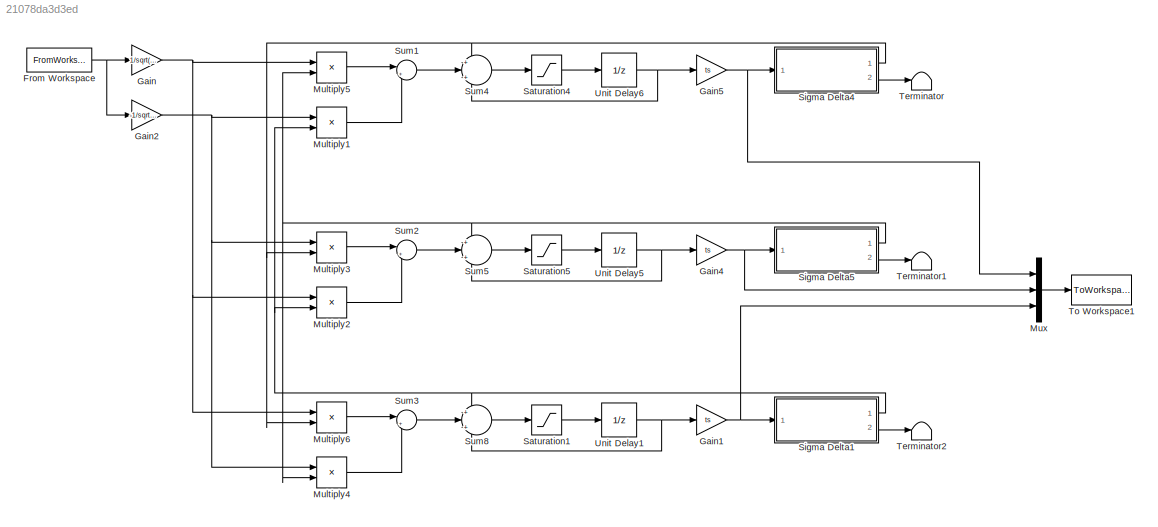
MODEL slx_21078da3d3ed
KIND model
CONFIG AbsTol = auto
CONFIG FixedStep = auto
CONFIG MaxStep = auto
CONFIG MinStep = auto
CONFIG RelTol = 1e-3
CONFIG SampleTimeConstraint = Unconstrained
CONFIG Solver = VariableStepAuto
CONFIG SolverMode = SingleTasking
CONFIG SolverName = VariableStepAuto
CONFIG StartTime = 0.0
CONFIG StopTime = t_stop
BLOCK [FromWorkspace] From Workspace
  SampleTime = ts
  VariableName = [t',w']
  ZeroCross = on
BLOCK [Gain] Gain
  Gain = 1/sqrt(3)
  OutDataTypeStr = Inherit: Inherit via internal rule
  ParamDataTypeStr = Inherit: Inherit via internal rule
  SaturateOnIntegerOverflow = off
BLOCK [Gain] Gain1
  Gain = ts
  OutDataTypeStr = Inherit: Inherit via internal rule
  ParamDataTypeStr = Inherit: Inherit via internal rule
  SaturateOnIntegerOverflow = off
BLOCK [Gain] Gain2
  Gain = -1/sqrt(3)
  OutDataTypeStr = Inherit: Inherit via internal rule
  ParamDataTypeStr = Inherit: Inherit via internal rule
  SaturateOnIntegerOverflow = off
BLOCK [Gain] Gain4
  Gain = ts
  OutDataTypeStr = Inherit: Inherit via internal rule
  ParamDataTypeStr = Inherit: Inherit via internal rule
  SaturateOnIntegerOverflow = off
BLOCK [Gain] Gain5
  Gain = ts
  OutDataTypeStr = Inherit: Inherit via internal rule
  ParamDataTypeStr = Inherit: Inherit via internal rule
  SaturateOnIntegerOverflow = off
BLOCK [Product] Multiply1
  InputSameDT = off
  OutDataTypeStr = Inherit: Inherit via internal rule
  Ports = [2, 1]
  RndMeth = Floor
  SaturateOnIntegerOverflow = off
BLOCK [Product] Multiply2
  InputSameDT = off
  OutDataTypeStr = Inherit: Inherit via internal rule
  Ports = [2, 1]
  RndMeth = Floor
  SaturateOnIntegerOverflow = off
BLOCK [Product] Multiply3
  InputSameDT = off
  OutDataTypeStr = Inherit: Inherit via internal rule
  Ports = [2, 1]
  RndMeth = Floor
  SaturateOnIntegerOverflow = off
BLOCK [Product] Multiply4
  InputSameDT = off
  OutDataTypeStr = Inherit: Inherit via internal rule
  Ports = [2, 1]
  RndMeth = Floor
  SaturateOnIntegerOverflow = off
BLOCK [Product] Multiply5
  InputSameDT = off
  OutDataTypeStr = Inherit: Inherit via internal rule
  Ports = [2, 1]
  RndMeth = Floor
  SaturateOnIntegerOverflow = off
BLOCK [Product] Multiply6
  InputSameDT = off
  OutDataTypeStr = Inherit: Inherit via internal rule
  Ports = [2, 1]
  RndMeth = Floor
  SaturateOnIntegerOverflow = off
BLOCK [Mux] Mux
  DisplayOption = bar
  Inputs = 3
  Ports = [3, 1]
BLOCK [Saturate] Saturation1
  InputPortMap = u0
  LowerLimit = -1/ts
  Ports = [1, 1]
  UpperLimit = 1/ts
BLOCK [Saturate] Saturation4
  InputPortMap = u0
  LowerLimit = -1/ts
  Ports = [1, 1]
  UpperLimit = 1/ts
BLOCK [Saturate] Saturation5
  InputPortMap = u0
  LowerLimit = -1/ts
  Ports = [1, 1]
  UpperLimit = 1/ts
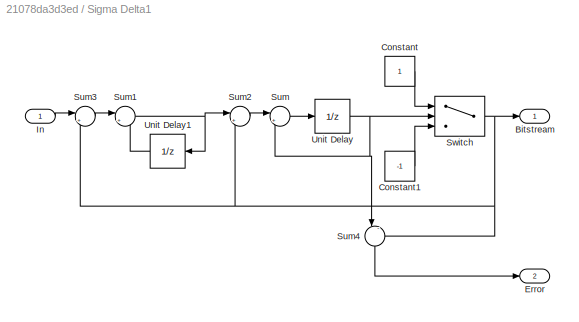
BLOCK [SubSystem] Sigma Delta1
  Ports = [1, 2]
  RequestExecContextInheritance = off
BLOCK [Outport] Sigma Delta1/Bitstream
  IconDisplay = Port number
BLOCK [Constant] Sigma Delta1/Constant
BLOCK [Constant] Sigma Delta1/Constant1
  Value = -1
BLOCK [Outport] Sigma Delta1/Error
  IconDisplay = Port number
  Port = 2
BLOCK [Inport] Sigma Delta1/In
  IconDisplay = Port number
BLOCK [Sum] Sigma Delta1/Sum
  IconShape = round
  InputSameDT = off
  Inputs = |++
  OutDataTypeStr = Inherit: Inherit via internal rule
  Ports = [2, 1]
  SaturateOnIntegerOverflow = off
BLOCK [Sum] Sigma Delta1/Sum1
  IconShape = round
  InputSameDT = off
  Inputs = |++
  OutDataTypeStr = Inherit: Inherit via internal rule
  Ports = [2, 1]
  SaturateOnIntegerOverflow = off
BLOCK [Sum] Sigma Delta1/Sum2
  IconShape = round
  InputSameDT = off
  Inputs = |+-
  OutDataTypeStr = Inherit: Inherit via internal rule
  Ports = [2, 1]
  SaturateOnIntegerOverflow = off
BLOCK [Sum] Sigma Delta1/Sum3
  IconShape = round
  InputSameDT = off
  Inputs = |+-
  OutDataTypeStr = Inherit: Inherit via internal rule
  Ports = [2, 1]
  SaturateOnIntegerOverflow = off
BLOCK [Sum] Sigma Delta1/Sum4
  IconShape = round
  InputSameDT = off
  Inputs = |-+
  OutDataTypeStr = Inherit: Inherit via internal rule
  Ports = [2, 1]
  SaturateOnIntegerOverflow = off
BLOCK [Switch] Sigma Delta1/Switch
  InputSameDT = off
  SaturateOnIntegerOverflow = off
BLOCK [UnitDelay] Sigma Delta1/Unit Delay
  HasFrameUpgradeWarning = on
  SampleTime = ts
BLOCK [UnitDelay] Sigma Delta1/Unit Delay1
  HasFrameUpgradeWarning = on
  SampleTime = ts
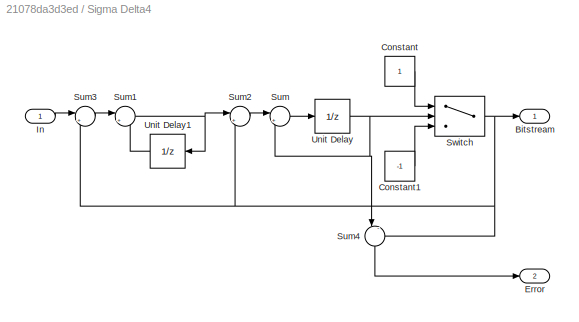
BLOCK [SubSystem] Sigma Delta4
  Ports = [1, 2]
  RequestExecContextInheritance = off
BLOCK [Outport] Sigma Delta4/Bitstream
  IconDisplay = Port number
BLOCK [Constant] Sigma Delta4/Constant
BLOCK [Constant] Sigma Delta4/Constant1
  Value = -1
BLOCK [Outport] Sigma Delta4/Error
  IconDisplay = Port number
  Port = 2
BLOCK [Inport] Sigma Delta4/In
  IconDisplay = Port number
BLOCK [Sum] Sigma Delta4/Sum
  IconShape = round
  InputSameDT = off
  Inputs = |++
  OutDataTypeStr = Inherit: Inherit via internal rule
  Ports = [2, 1]
  SaturateOnIntegerOverflow = off
BLOCK [Sum] Sigma Delta4/Sum1
  IconShape = round
  InputSameDT = off
  Inputs = |++
  OutDataTypeStr = Inherit: Inherit via internal rule
  Ports = [2, 1]
  SaturateOnIntegerOverflow = off
BLOCK [Sum] Sigma Delta4/Sum2
  IconShape = round
  InputSameDT = off
  Inputs = |+-
  OutDataTypeStr = Inherit: Inherit via internal rule
  Ports = [2, 1]
  SaturateOnIntegerOverflow = off
BLOCK [Sum] Sigma Delta4/Sum3
  IconShape = round
  InputSameDT = off
  Inputs = |+-
  OutDataTypeStr = Inherit: Inherit via internal rule
  Ports = [2, 1]
  SaturateOnIntegerOverflow = off
BLOCK [Sum] Sigma Delta4/Sum4
  IconShape = round
  InputSameDT = off
  Inputs = |-+
  OutDataTypeStr = Inherit: Inherit via internal rule
  Ports = [2, 1]
  SaturateOnIntegerOverflow = off
BLOCK [Switch] Sigma Delta4/Switch
  InputSameDT = off
  SaturateOnIntegerOverflow = off
BLOCK [UnitDelay] Sigma Delta4/Unit Delay
  HasFrameUpgradeWarning = on
  SampleTime = ts
BLOCK [UnitDelay] Sigma Delta4/Unit Delay1
  HasFrameUpgradeWarning = on
  SampleTime = ts
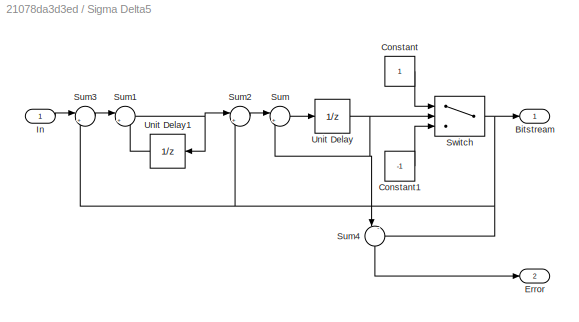
BLOCK [SubSystem] Sigma Delta5
  Ports = [1, 2]
  RequestExecContextInheritance = off
BLOCK [Outport] Sigma Delta5/Bitstream
  IconDisplay = Port number
BLOCK [Constant] Sigma Delta5/Constant
BLOCK [Constant] Sigma Delta5/Constant1
  Value = -1
BLOCK [Outport] Sigma Delta5/Error
  IconDisplay = Port number
  Port = 2
BLOCK [Inport] Sigma Delta5/In
  IconDisplay = Port number
BLOCK [Sum] Sigma Delta5/Sum
  IconShape = round
  InputSameDT = off
  Inputs = |++
  OutDataTypeStr = Inherit: Inherit via internal rule
  Ports = [2, 1]
  SaturateOnIntegerOverflow = off
BLOCK [Sum] Sigma Delta5/Sum1
  IconShape = round
  InputSameDT = off
  Inputs = |++
  OutDataTypeStr = Inherit: Inherit via internal rule
  Ports = [2, 1]
  SaturateOnIntegerOverflow = off
BLOCK [Sum] Sigma Delta5/Sum2
  IconShape = round
  InputSameDT = off
  Inputs = |+-
  OutDataTypeStr = Inherit: Inherit via internal rule
  Ports = [2, 1]
  SaturateOnIntegerOverflow = off
BLOCK [Sum] Sigma Delta5/Sum3
  IconShape = round
  InputSameDT = off
  Inputs = |+-
  OutDataTypeStr = Inherit: Inherit via internal rule
  Ports = [2, 1]
  SaturateOnIntegerOverflow = off
BLOCK [Sum] Sigma Delta5/Sum4
  IconShape = round
  InputSameDT = off
  Inputs = |-+
  OutDataTypeStr = Inherit: Inherit via internal rule
  Ports = [2, 1]
  SaturateOnIntegerOverflow = off
BLOCK [Switch] Sigma Delta5/Switch
  InputSameDT = off
  SaturateOnIntegerOverflow = off
BLOCK [UnitDelay] Sigma Delta5/Unit Delay
  HasFrameUpgradeWarning = on
  SampleTime = ts
BLOCK [UnitDelay] Sigma Delta5/Unit Delay1
  HasFrameUpgradeWarning = on
  SampleTime = ts
BLOCK [Sum] Sum1
  IconShape = round
  InputSameDT = off
  Inputs = |++
  OutDataTypeStr = Inherit: Inherit via internal rule
  Ports = [2, 1]
  SaturateOnIntegerOverflow = off
BLOCK [Sum] Sum2
  IconShape = round
  InputSameDT = off
  Inputs = |++
  OutDataTypeStr = Inherit: Inherit via internal rule
  Ports = [2, 1]
  SaturateOnIntegerOverflow = off
BLOCK [Sum] Sum3
  IconShape = round
  InputSameDT = off
  Inputs = |++
  OutDataTypeStr = Inherit: Inherit via internal rule
  Ports = [2, 1]
  SaturateOnIntegerOverflow = off
BLOCK [Sum] Sum4
  IconShape = round
  InputSameDT = off
  Inputs = +|+|+
  OutDataTypeStr = Inherit: Inherit via internal rule
  Ports = [3, 1]
  SaturateOnIntegerOverflow = off
BLOCK [Sum] Sum5
  IconShape = round
  InputSameDT = off
  Inputs = +|+|+
  OutDataTypeStr = Inherit: Inherit via internal rule
  Ports = [3, 1]
  SaturateOnIntegerOverflow = off
BLOCK [Sum] Sum8
  IconShape = round
  InputSameDT = off
  Inputs = +|+|+
  OutDataTypeStr = Inherit: Inherit via internal rule
  Ports = [3, 1]
  SaturateOnIntegerOverflow = off
BLOCK [Terminator] Terminator
BLOCK [Terminator] Terminator1
BLOCK [Terminator] Terminator2
BLOCK [ToWorkspace] To Workspace1
  FixptAsFi = on
  MaxDataPoints = inf
  Ports = [1]
  SampleTime = -1
  Save2DSignal = 2-D array (concatenate along first dimension)
  VariableName = osc
BLOCK [UnitDelay] Unit Delay1
  HasFrameUpgradeWarning = on
  InitialCondition = x0(3)
  SampleTime = ts
BLOCK [UnitDelay] Unit Delay5
  HasFrameUpgradeWarning = on
  InitialCondition = x0(2)
  SampleTime = ts
BLOCK [UnitDelay] Unit Delay6
  HasFrameUpgradeWarning = on
  InitialCondition = x0(1)
  SampleTime = ts
NET From Workspace:1 -> Gain2:1, Gain:1
NET Gain1:1 -> Mux:3, Sigma Delta1:1
NET Gain2:1 -> Multiply1:1, Multiply3:1, Multiply4:1
NET Gain4:1 -> Mux:2, Sigma Delta5:1
NET Gain5:1 -> Mux:1, Sigma Delta4:1
NET Gain:1 -> Multiply2:1, Multiply5:1, Multiply6:1
LINE Multiply1:1 -> Sum1:2
LINE Multiply2:1 -> Sum2:2
LINE Multiply3:1 -> Sum2:1
LINE Multiply4:1 -> Sum3:2
LINE Multiply5:1 -> Sum1:1
LINE Multiply6:1 -> Sum3:1
LINE Mux:1 -> To Workspace1:1
LINE Saturation1:1 -> Unit Delay1:1
LINE Saturation4:1 -> Unit Delay6:1
LINE Saturation5:1 -> Unit Delay5:1
LINE Sigma Delta1/Constant1:1 -> Sigma Delta1/Switch:3
LINE Sigma Delta1/Constant:1 -> Sigma Delta1/Switch:1
LINE Sigma Delta1/In:1 -> Sigma Delta1/Sum3:1
NET Sigma Delta1/Sum1:1 -> Sigma Delta1/Sum2:1, Sigma Delta1/Unit Delay1:1
LINE Sigma Delta1/Sum2:1 -> Sigma Delta1/Sum:1
LINE Sigma Delta1/Sum3:1 -> Sigma Delta1/Sum1:1
LINE Sigma Delta1/Sum4:1 -> Sigma Delta1/Error:1
LINE Sigma Delta1/Sum:1 -> Sigma Delta1/Unit Delay:1
NET Sigma Delta1/Switch:1 -> Sigma Delta1/Bitstream:1, Sigma Delta1/Sum2:2, Sigma Delta1/Sum3:2, Sigma Delta1/Sum4:2
LINE Sigma Delta1/Unit Delay1:1 -> Sigma Delta1/Sum1:2
NET Sigma Delta1/Unit Delay:1 -> Sigma Delta1/Sum4:1, Sigma Delta1/Sum:2, Sigma Delta1/Switch:2
NET Sigma Delta1:1 -> Multiply1:2, Multiply2:2, Sum8:1
LINE Sigma Delta1:2 -> Terminator2:1
LINE Sigma Delta4/Constant1:1 -> Sigma Delta4/Switch:3
LINE Sigma Delta4/Constant:1 -> Sigma Delta4/Switch:1
LINE Sigma Delta4/In:1 -> Sigma Delta4/Sum3:1
NET Sigma Delta4/Sum1:1 -> Sigma Delta4/Sum2:1, Sigma Delta4/Unit Delay1:1
LINE Sigma Delta4/Sum2:1 -> Sigma Delta4/Sum:1
LINE Sigma Delta4/Sum3:1 -> Sigma Delta4/Sum1:1
LINE Sigma Delta4/Sum4:1 -> Sigma Delta4/Error:1
LINE Sigma Delta4/Sum:1 -> Sigma Delta4/Unit Delay:1
NET Sigma Delta4/Switch:1 -> Sigma Delta4/Bitstream:1, Sigma Delta4/Sum2:2, Sigma Delta4/Sum3:2, Sigma Delta4/Sum4:2
LINE Sigma Delta4/Unit Delay1:1 -> Sigma Delta4/Sum1:2
NET Sigma Delta4/Unit Delay:1 -> Sigma Delta4/Sum4:1, Sigma Delta4/Sum:2, Sigma Delta4/Switch:2
NET Sigma Delta4:1 -> Multiply3:2, Multiply6:2, Sum4:1
LINE Sigma Delta4:2 -> Terminator:1
LINE Sigma Delta5/Constant1:1 -> Sigma Delta5/Switch:3
LINE Sigma Delta5/Constant:1 -> Sigma Delta5/Switch:1
LINE Sigma Delta5/In:1 -> Sigma Delta5/Sum3:1
NET Sigma Delta5/Sum1:1 -> Sigma Delta5/Sum2:1, Sigma Delta5/Unit Delay1:1
LINE Sigma Delta5/Sum2:1 -> Sigma Delta5/Sum:1
LINE Sigma Delta5/Sum3:1 -> Sigma Delta5/Sum1:1
LINE Sigma Delta5/Sum4:1 -> Sigma Delta5/Error:1
LINE Sigma Delta5/Sum:1 -> Sigma Delta5/Unit Delay:1
NET Sigma Delta5/Switch:1 -> Sigma Delta5/Bitstream:1, Sigma Delta5/Sum2:2, Sigma Delta5/Sum3:2, Sigma Delta5/Sum4:2
LINE Sigma Delta5/Unit Delay1:1 -> Sigma Delta5/Sum1:2
NET Sigma Delta5/Unit Delay:1 -> Sigma Delta5/Sum4:1, Sigma Delta5/Sum:2, Sigma Delta5/Switch:2
NET Sigma Delta5:1 -> Multiply4:2, Multiply5:2, Sum5:1
LINE Sigma Delta5:2 -> Terminator1:1
LINE Sum1:1 -> Sum4:2
LINE Sum2:1 -> Sum5:2
LINE Sum3:1 -> Sum8:2
LINE Sum4:1 -> Saturation4:1
LINE Sum5:1 -> Saturation5:1
LINE Sum8:1 -> Saturation1:1
NET Unit Delay1:1 -> Gain1:1, Sum8:3
NET Unit Delay5:1 -> Gain4:1, Sum5:3
NET Unit Delay6:1 -> Gain5:1, Sum4:3
note: NET lines group one-source signal fan-out (src -> all destinations, sorted); 1:1 wires keep LINE
